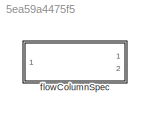
MODEL slx_5ea59a4475f5
KIND library
CONFIG AbsTol = auto
CONFIG EnableMultiTasking = off
CONFIG FixedStep = auto
CONFIG MaxStep = auto
CONFIG MinStep = auto
CONFIG RelTol = 1e-3
CONFIG SampleTimeConstraint = Unconstrained
CONFIG SolverName = VariableStepAuto
CONFIG StartTime = 0.0
CONFIG StopTime = 10.0
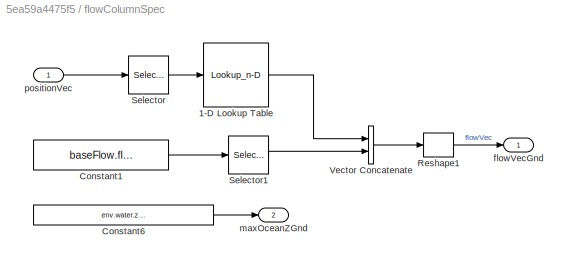
BLOCK [SubSystem] flowColumnSpec
  Ports = [1, 2]
  RequestExecContextInheritance = off
  VariantControl = VSS_flowCalculation_constXYZT
BLOCK [Lookup_n-D] flowColumnSpec/1-D Lookup Table
  BreakpointsForDimension1 = height
  InputPortMap = u0
  InternalRulePriority = Speed
  NumberOfTableDimensions = 1
  Ports = [1, 1]
  RndMeth = Simplest
  Table = flow
BLOCK [Constant] flowColumnSpec/Constant1
  Value = baseFlow.flowVec.Value
BLOCK [Constant] flowColumnSpec/Constant6
  Value = env.water.zGridPoints.Value(end)
BLOCK [Reshape] flowColumnSpec/Reshape1
  OutputDimensionality = Column vector (2-D)
  Ports = [1, 1]
BLOCK [Selector] flowColumnSpec/Selector
  IndexOptions = Index vector (dialog)
  Indices = 3
  InputPortWidth = 3
  OutputSizes = 1
  Ports = [1, 1]
BLOCK [Selector] flowColumnSpec/Selector1
  IndexOptions = Index vector (dialog)
  Indices = [2 3]
  InputPortWidth = 3
  OutputSizes = 1
  Ports = [1, 1]
BLOCK [Concatenate] flowColumnSpec/Vector Concatenate
  Ports = [2, 1]
BLOCK [Outport] flowColumnSpec/flowVecGnd
  VectorParamsAs1DForOutWhenUnconnected = off
BLOCK [Outport] flowColumnSpec/maxOceanZGnd
  Port = 2
  VectorParamsAs1DForOutWhenUnconnected = off
BLOCK [Inport] flowColumnSpec/positionVec
  PortDimensions = [3 1]
LINE flowColumnSpec/1-D Lookup Table:1 -> flowColumnSpec/Vector Concatenate:1
LINE flowColumnSpec/Constant1:1 -> flowColumnSpec/Selector1:1
LINE flowColumnSpec/Constant6:1 -> flowColumnSpec/maxOceanZGnd:1
LINE flowColumnSpec/Reshape1:1 -> flowColumnSpec/flowVecGnd:1
LINE flowColumnSpec/Selector1:1 -> flowColumnSpec/Vector Concatenate:2
LINE flowColumnSpec/Selector:1 -> flowColumnSpec/1-D Lookup Table:1
LINE flowColumnSpec/Vector Concatenate:1 -> flowColumnSpec/Reshape1:1
LINE flowColumnSpec/positionVec:1 -> flowColumnSpec/Selector:1
